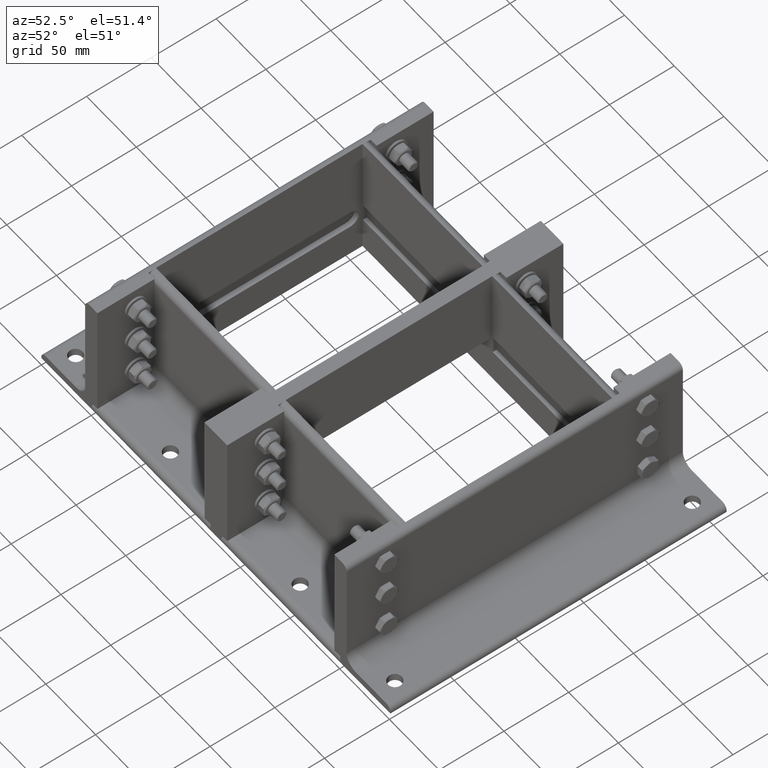
[diagram: clean part render]
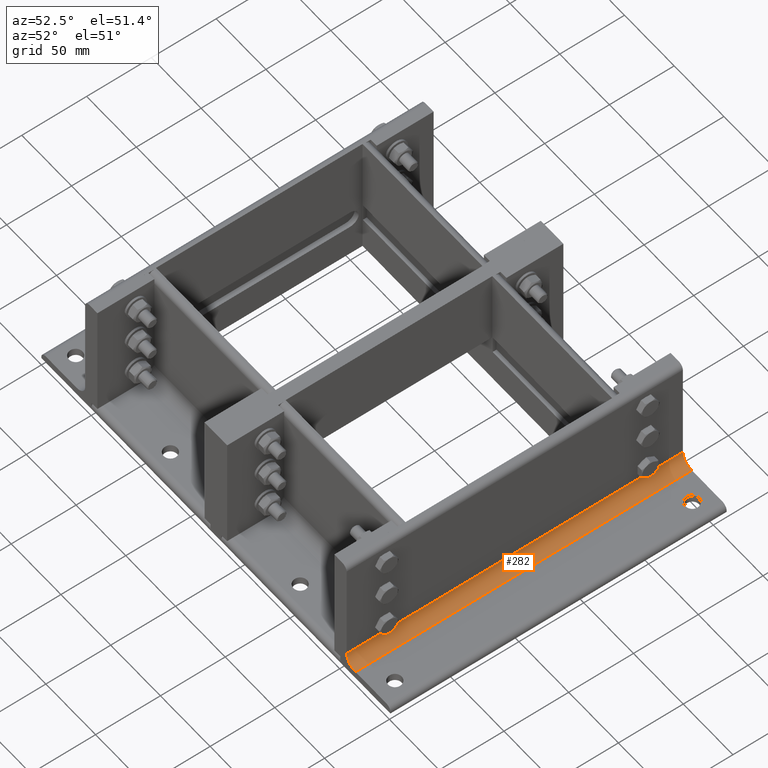
[diagram: same view with one face highlighted and labeled with its STEP entity id]
A machine part, auxiliary view. The second image highlights one B-rep face of the part: STEP entity #282.
In plain terms, the highlighted cylindrical surface (edge-blend (fillet) strip) has radius 9 mm, axis along (0, 1, 0).
Its self-contained STEP definition (entity closure, byte-faithful):
#241=CARTESIAN_POINT('',(15.0,0.0,15.0));
#242=DIRECTION('',(0.0,1.0,0.0));
#243=DIRECTION('',(-0.707106781186548,0.0,-0.707106781186547));
#244=AXIS2_PLACEMENT_3D('',#241,#242,#243);
#245=CYLINDRICAL_SURFACE('',#244,9.0);
#246=CARTESIAN_POINT('',(5.999999999999998,0.0,15.000000000000002));
#247=VERTEX_POINT('',#246);
#248=CARTESIAN_POINT('',(15.0,0.0,6.000000000000001));
#249=VERTEX_POINT('',#248);
#250=CARTESIAN_POINT('',(15.0,0.0,15.0));
#251=DIRECTION('',(0.0,-1.0,0.0));
#252=DIRECTION('',(-0.707106781186548,0.0,-0.707106781186547));
#253=AXIS2_PLACEMENT_3D('',#250,#251,#252);
#254=CIRCLE('',#253,9.0);
#255=EDGE_CURVE('',#247,#249,#254,.T.);
#256=ORIENTED_EDGE('',*,*,#255,.T.);
#257=CARTESIAN_POINT('',(15.0,259.5,6.000000000000001));
#258=VERTEX_POINT('',#257);
#259=CARTESIAN_POINT('',(14.999999999999998,0.0,6.000000000000001));
#260=DIRECTION('',(0.0,1.0,0.0));
#261=VECTOR('',#260,259.5);
#262=LINE('',#259,#261);
#263=EDGE_CURVE('',#249,#258,#262,.T.);
#264=ORIENTED_EDGE('',*,*,#263,.T.);
#265=CARTESIAN_POINT('',(5.999999999999998,259.5,15.000000000000002));
#266=VERTEX_POINT('',#265);
#267=CARTESIAN_POINT('',(15.0,259.5,15.0));
#268=DIRECTION('',(0.0,1.0,0.0));
#269=DIRECTION('',(-0.707106781186548,0.0,-0.707106781186547));
#270=AXIS2_PLACEMENT_3D('',#267,#268,#269);
#271=CIRCLE('',#270,9.0);
#272=EDGE_CURVE('',#258,#266,#271,.T.);
#273=ORIENTED_EDGE('',*,*,#272,.T.);
#274=CARTESIAN_POINT('',(5.999999999999998,259.5,15.000000000000002));
#275=DIRECTION('',(0.0,-1.0,0.0));
#276=VECTOR('',#275,259.5);
#277=LINE('',#274,#276);
#278=EDGE_CURVE('',#266,#247,#277,.T.);
#279=ORIENTED_EDGE('',*,*,#278,.T.);
#280=EDGE_LOOP('',(#256,#264,#273,#279));
#281=FACE_OUTER_BOUND('',#280,.T.);
#282=ADVANCED_FACE('',(#281),#245,.F.);